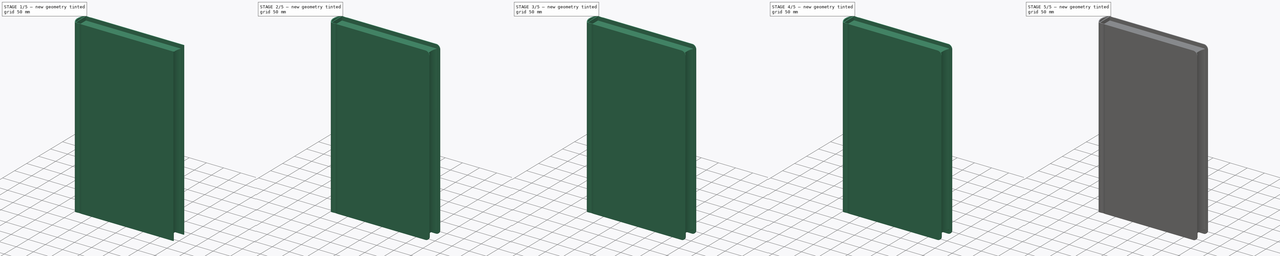
[diagram: build sequence overview — one tinted view per stage of 5, left to right]
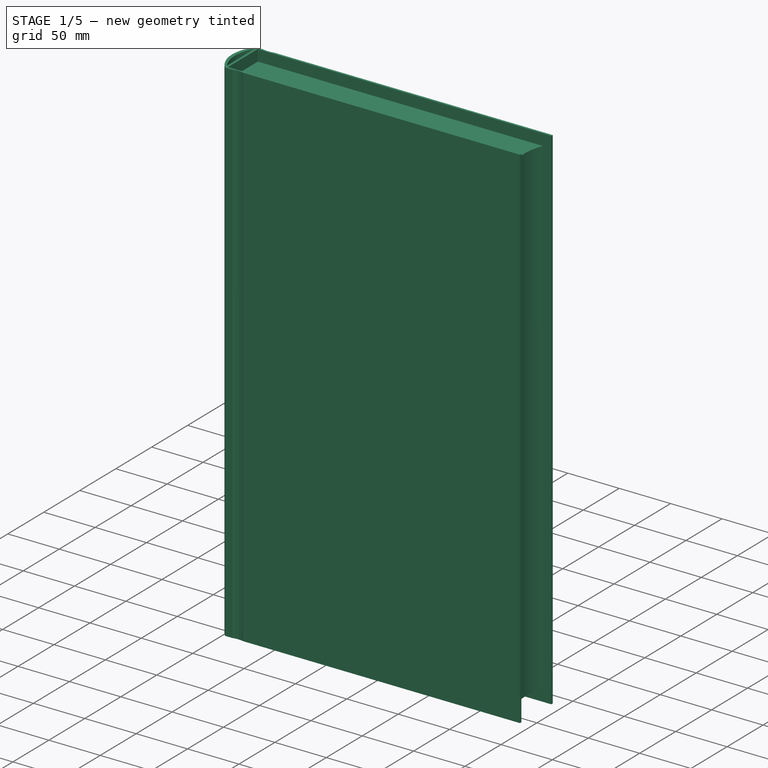
[diagram: stage 1 of 5 — iso view after this stage's code; geometry added in this stage tinted green]
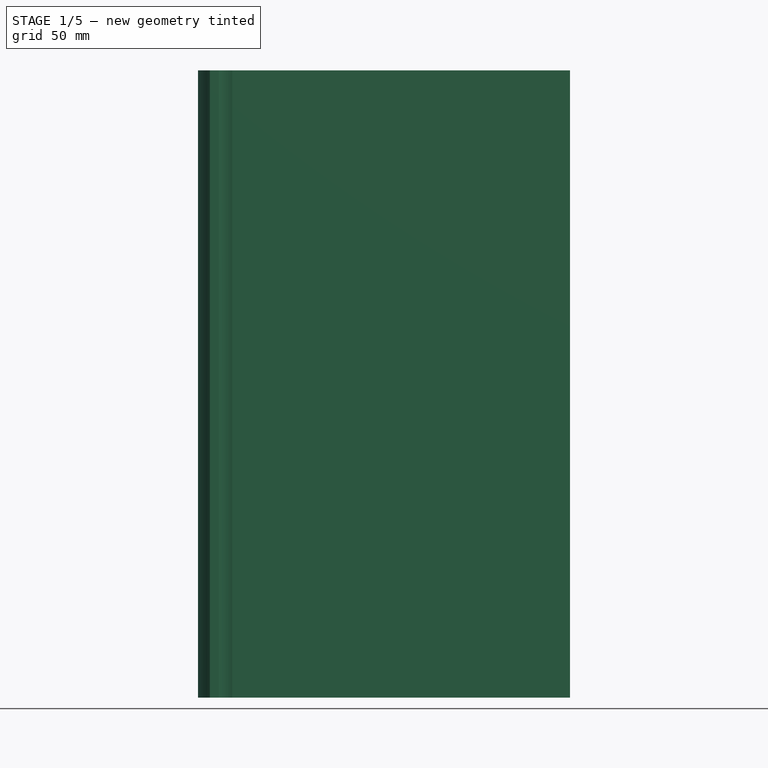
[diagram: stage 1 of 5 — front view after this stage's code; geometry added in this stage tinted green]
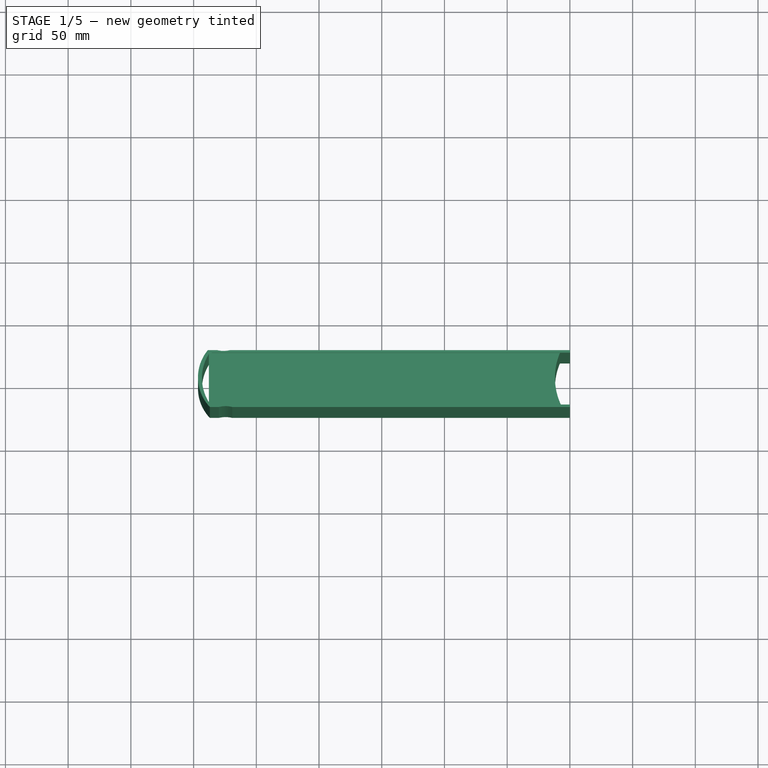
[diagram: stage 1 of 5 — top view after this stage's code; geometry added in this stage tinted green]
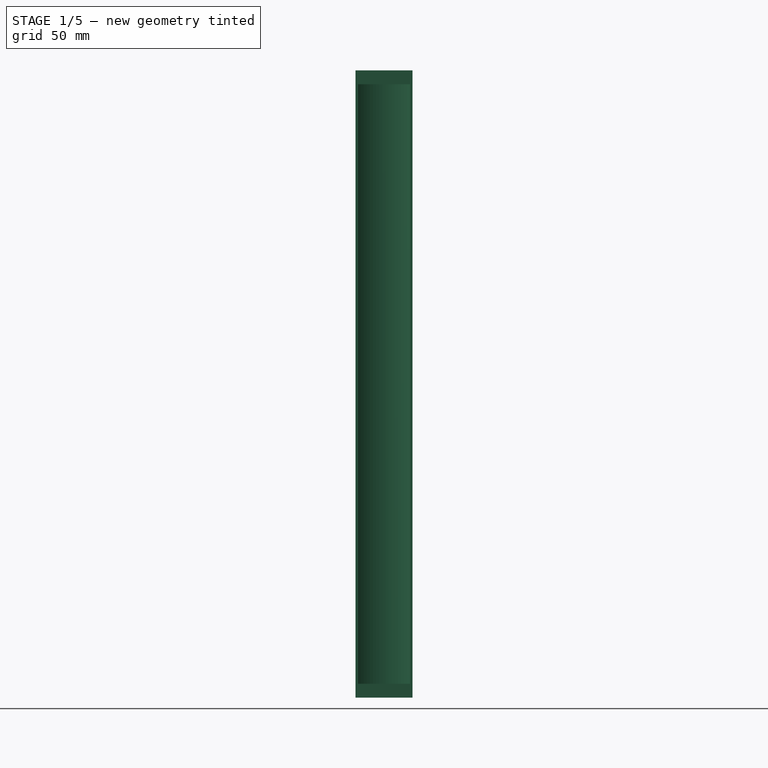
[diagram: stage 1 of 5 — right view after this stage's code; geometry added in this stage tinted green]
FCSTD DOCUMENT  (FreeCAD 0.21R33771 (Git))
Label: kniga
License: All rights reserved
LicenseURL: http://en.wikipedia.org/wiki/All_rights_reserved
objects: PartDesign::Fillet×13, Sketcher::SketchObject×4, PartDesign::Pocket×3, PartDesign::Pad×1, Part::Part2DObjectPython×1, Part::Extrusion×1, Part::MultiFuse×1, PartDesign::Body×1
note: 42 computed .brp shape members not serialized (recipe doc carries the construction recipe); baked Part::Feature solids carry a one-line shape summary decoded from their .brp

FEATURE [Sketcher::SketchObject] Sketch
  FullyConstrained = false
  MapMode = 5
  Support = -> [XY_Plane]
  sketch-geometry (13):
    g0: LineSegment StartX=-138.583 StartY=21.8216 StartZ=0 EndX=-131.38 EndY=21.8216 EndZ=0
    g1: LineSegment StartX=150 StartY=-23.5671 StartZ=0 EndX=-119.216 EndY=-23.5671 EndZ=0
    g2: GeomPoint X=0 Y=0 Z=0
    g3: ArcOfCircle CenterX=-112.541 CenterY=0 CenterZ=0 NormalX=0 NormalY=0 NormalZ=1 AngleXU=0 Radius=33.9758 StartAngle=2.44414 EndAngle=3.90815
    g4: ArcOfCircle CenterX=189.168 CenterY=0 CenterZ=0 NormalX=0 NormalY=0 NormalZ=1 AngleXU=0 Radius=51.0727 StartAngle=2.74303 EndAngle=3.57756
    g5: LineSegment StartX=150.124 StartY=21.8208 StartZ=0 EndX=150.124 EndY=19.8208 EndZ=0
    g6: LineSegment StartX=150 StartY=-23.5671 StartZ=0 EndX=150 EndY=-21.5671 EndZ=0
    g7: LineSegment StartX=142.873 StartY=-21.5671 StartZ=0 EndX=150 EndY=-21.5671 EndZ=0
    g8: LineSegment StartX=150.124 StartY=19.8208 StartZ=0 EndX=142.099 EndY=19.8208 EndZ=0
    g9: ArcOfCircle CenterX=-126.083 CenterY=42.4316 CenterZ=0 NormalX=0 NormalY=0 NormalZ=1 AngleXU=0 Radius=21.28 StartAngle=4.46079 EndAngle=4.96399
    g10: ArcOfCircle CenterX=-124.514 CenterY=-44.1771 CenterZ=0 NormalX=0 NormalY=0 NormalZ=1 AngleXU=0 Radius=21.28 StartAngle=1.3192 EndAngle=1.8224
    g11: LineSegment StartX=-129.812 StartY=-23.5672 StartZ=0 EndX=-137.014 EndY=-23.5676 EndZ=0
    g12: LineSegment StartX=-120.785 StartY=21.8216 StartZ=0 EndX=150.124 EndY=21.8208 EndZ=0
  constraints (29):
    c: Horizontal(g0)
    c: Horizontal(g1)
    c: Coincident(g2,g-1)
    c: PointOnObject(g3,g-1)
    c: Coincident(g0,g3)
    c: Coincident(g3,g11)
    c: PointOnObject(g4,g-1)
    c: Coincident(g5,g12)
    c: Vertical(g5)
    c: Coincident(g6,g1)
    c: Vertical(g6)
    c: Coincident(g7,g6)
    c: Horizontal(g7)
    c: Coincident(g8,g5)
    c: Horizontal(g8)
    c: DistanceY(g5,g5) = 2
    c: DistanceY(g6,g6) = 2
    c: Coincident(g4,g8)
    c: Coincident(g4,g7)
    c: DistanceX(g0,g9) = 12.5
    c: Radius(g9) = 21.28
    c: Radius(g10) = 21.28
    c: DistanceX(g11,g10) = 12.5
    c: Distance(g9,g0) = 20.61
    c: Distance(g10,g1) = 20.61
    c: Coincident(g1,g10)
    c: Coincident(g11,g10)
    c: Coincident(g0,g9)
    c: Coincident(g12,g9)
FEATURE [PartDesign::Pad] Pad
  Direction = (0,0,1)
  Length = 500
  Length2 = 10
  Profile = -> Sketch
  ReferenceAxis = -> Sketch [N_Axis]
  Refine = true
  Type = 0
FEATURE [Sketcher::SketchObject] Sketch002
  FullyConstrained = false
  MapMode = 5
  Placement = pos=(0,0,0) rot=(1,0,0;3.14159rad)
  Support = -> [Pad]
  sketch-geometry (2):
    g0: ArcOfCircle CenterX=-107.024 CenterY=0.494262 CenterZ=0 NormalX=0 NormalY=0 NormalZ=1 AngleXU=0 Radius=36.2996 StartAngle=2.58102 EndAngle=3.70216
    g1: LineSegment StartX=-137.768 StartY=19.7937 StartZ=0 EndX=-137.768 EndY=-18.8052 EndZ=0
  constraints (3):
    c: Vertical(g1)
    c: Coincident(g0,g1)
    c: Coincident(g0,g1)
FEATURE [PartDesign::Pocket] Pocket
  BaseFeature = -> Pad
  Direction = (0,0,1)
  Length = 5
  Length2 = 5
  Profile = -> Sketch002
  ReferenceAxis = -> Sketch002 [N_Axis]
  Refine = true
  Type = 1
FEATURE [Sketcher::SketchObject] Sketch003
  FullyConstrained = false
  MapMode = 5
  Placement = pos=(0,0,0) rot=(1,0,0;3.14159rad)
  Support = -> [Pocket]
  sketch-geometry (5):
    g0: LineSegment StartX=144.041 StartY=-19.8147 StartZ=0 EndX=144.041 EndY=21.5664 EndZ=0
    g1: LineSegment StartX=144.041 StartY=21.5664 StartZ=0 EndX=-135.471 EndY=21.5664 EndZ=0
    g2: LineSegment StartX=-135.471 StartY=21.5664 StartZ=0 EndX=-135.471 EndY=-19.8147 EndZ=0
    g3: LineSegment StartX=-135.471 StartY=-19.8147 StartZ=0 EndX=144.041 EndY=-19.8147 EndZ=0
    g4: GeomPoint X=0 Y=0.774971 Z=0
  constraints (9):
    c: Coincident(g0,g1)
    c: Coincident(g1,g2)
    c: Coincident(g2,g3)
    c: Coincident(g3,g0)
    c: Horizontal(g1)
    c: Horizontal(g3)
    c: Vertical(g0)
    c: Vertical(g2)
    c: PointOnObject(g4,g-2)
FEATURE [PartDesign::Pocket] Pocket001
  BaseFeature = -> Pocket
  Direction = (0,0,1)
  Length = 11
  Length2 = 5
  Profile = -> Sketch003
  ReferenceAxis = -> Sketch003 [N_Axis]
  Refine = true
  Type = 0
FEATURE [PartDesign::Pocket] Pocket002
  BaseFeature = -> Pocket001
  Direction = (0,0,1)
  Length = 11
  Length2 = 5
  Profile = -> Sketch004
  ReferenceAxis = -> Sketch004 [N_Axis]
  Refine = true
  Reversed = true
  Type = 0
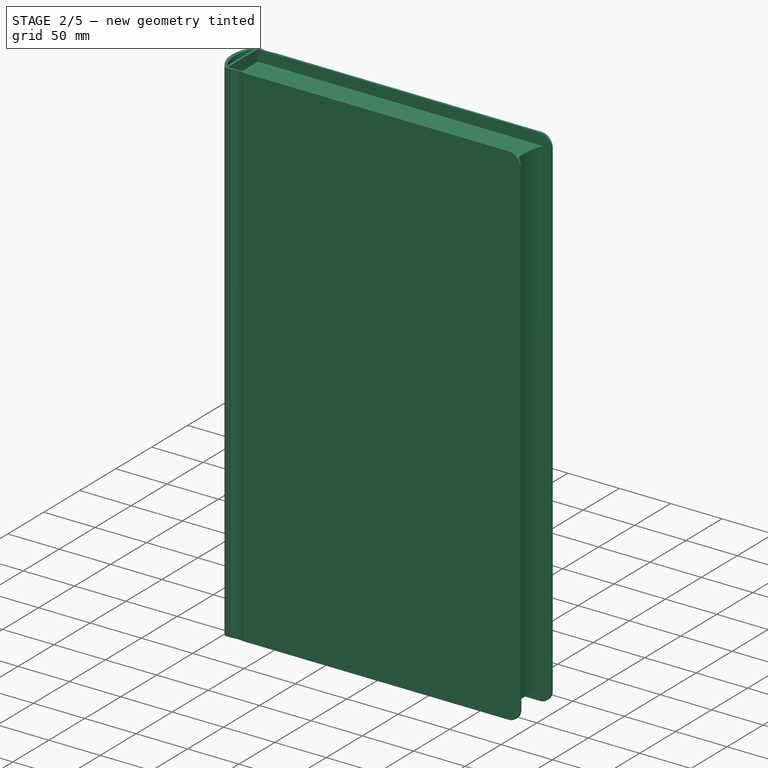
[diagram: stage 2 of 5 — iso view after this stage's code; geometry added in this stage tinted green]
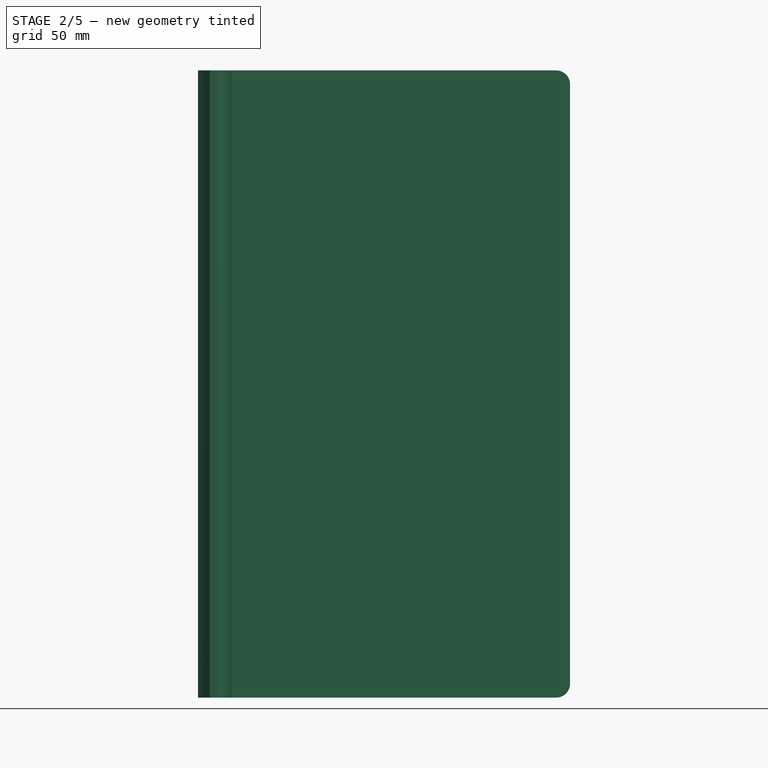
[diagram: stage 2 of 5 — front view after this stage's code; geometry added in this stage tinted green]
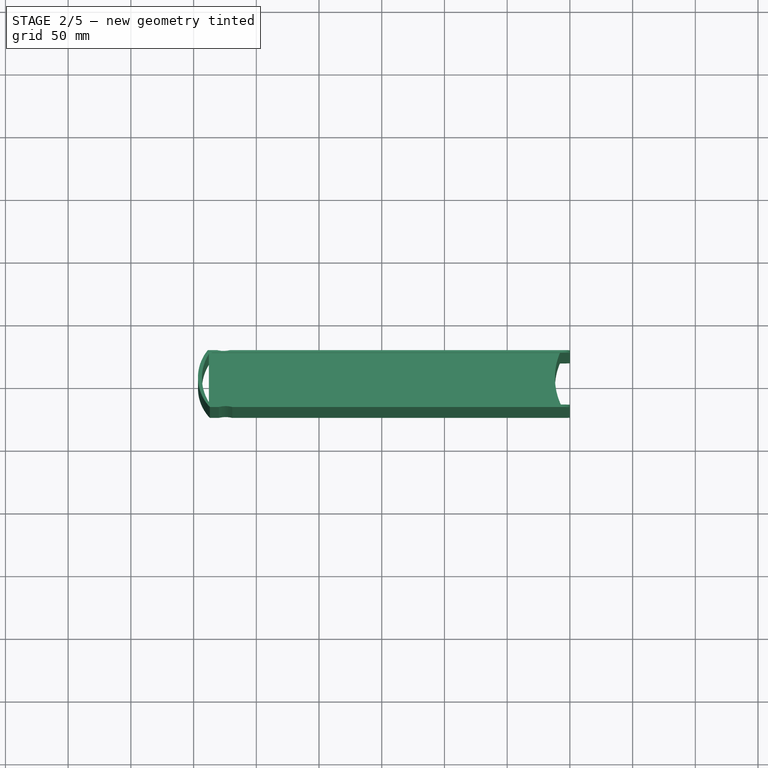
[diagram: stage 2 of 5 — top view after this stage's code; geometry added in this stage tinted green]
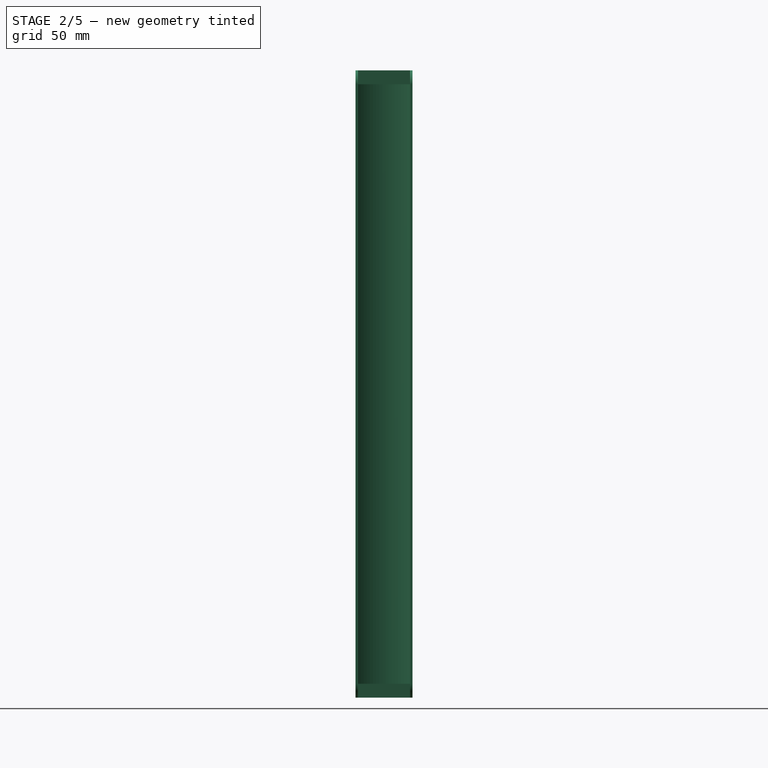
[diagram: stage 2 of 5 — right view after this stage's code; geometry added in this stage tinted green]
FEATURE [PartDesign::Fillet] Fillet
  Base = -> Pocket002 [Edge31]
  BaseFeature = -> Pocket002
  Radius = 11
  Refine = true
  SupportTransform = false
  UseAllEdges = false
FEATURE [PartDesign::Fillet] Fillet001
  Base = -> Fillet [Edge14]
  BaseFeature = -> Fillet
  Radius = 11
  Refine = true
  SupportTransform = false
  UseAllEdges = false
FEATURE [PartDesign::Fillet] Fillet002
  Base = -> Fillet001 [Edge62]
  BaseFeature = -> Fillet001
  Radius = 11
  Refine = true
  SupportTransform = false
  UseAllEdges = false
FEATURE [PartDesign::Fillet] Fillet003
  Base = -> Fillet002 [Edge29]
  BaseFeature = -> Fillet002
  Radius = 11
  Refine = true
  SupportTransform = false
  UseAllEdges = false
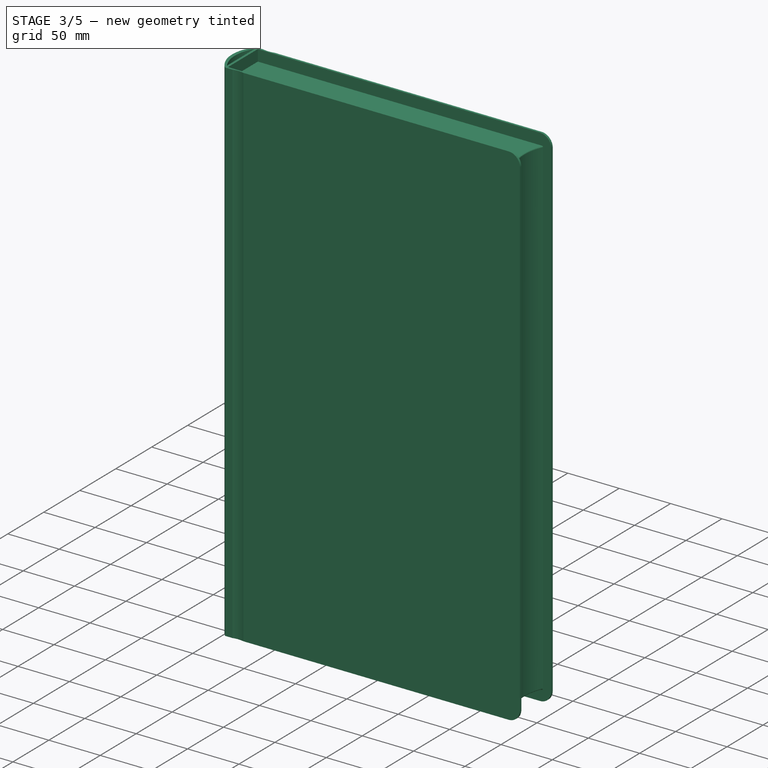
[diagram: stage 3 of 5 — iso view after this stage's code; geometry added in this stage tinted green]
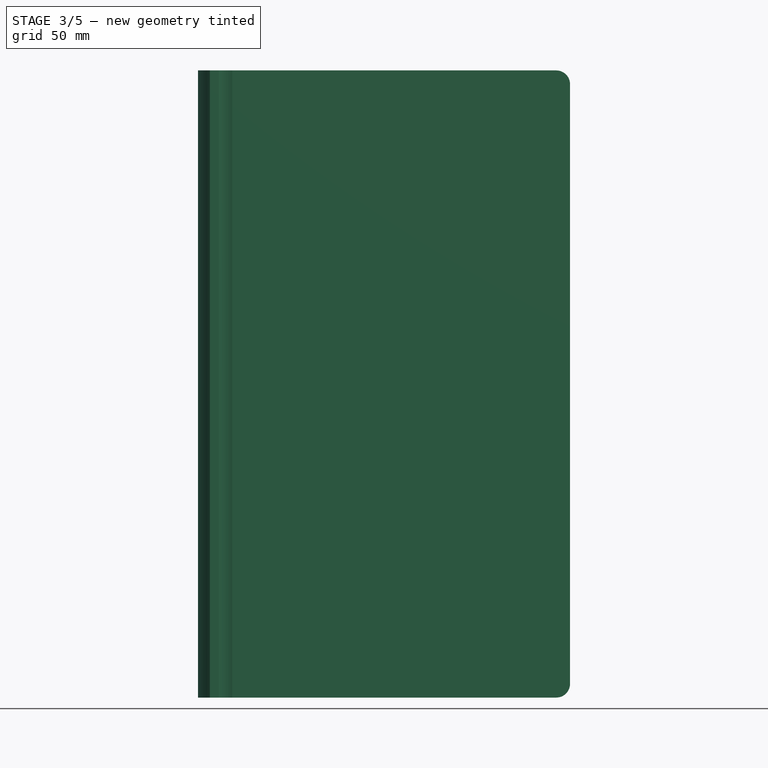
[diagram: stage 3 of 5 — front view after this stage's code; geometry added in this stage tinted green]
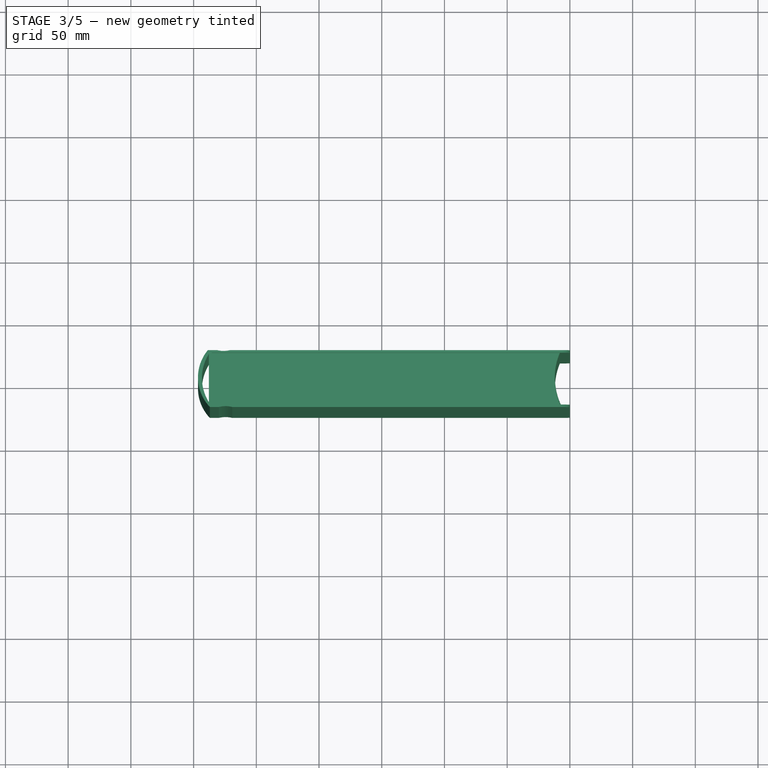
[diagram: stage 3 of 5 — top view after this stage's code; geometry added in this stage tinted green]
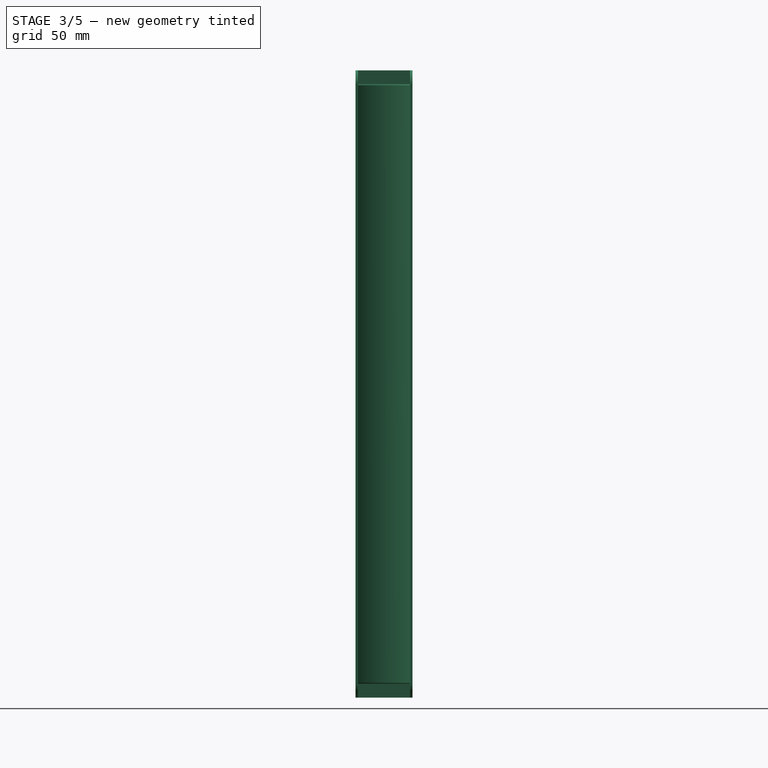
[diagram: stage 3 of 5 — right view after this stage's code; geometry added in this stage tinted green]
FEATURE [PartDesign::Fillet] Fillet004
  Base = -> Fillet003 [Edge58]
  BaseFeature = -> Fillet003
  Radius = 1
  Refine = true
  SupportTransform = false
  UseAllEdges = false
FEATURE [PartDesign::Fillet] Fillet005
  Base = -> Fillet004 [Edge12]
  BaseFeature = -> Fillet004
  Radius = 1
  Refine = true
  SupportTransform = false
  UseAllEdges = false
FEATURE [PartDesign::Fillet] Fillet006
  Base = -> Fillet005 [Edge28]
  BaseFeature = -> Fillet005
  Radius = 1
  Refine = true
  SupportTransform = false
  UseAllEdges = false
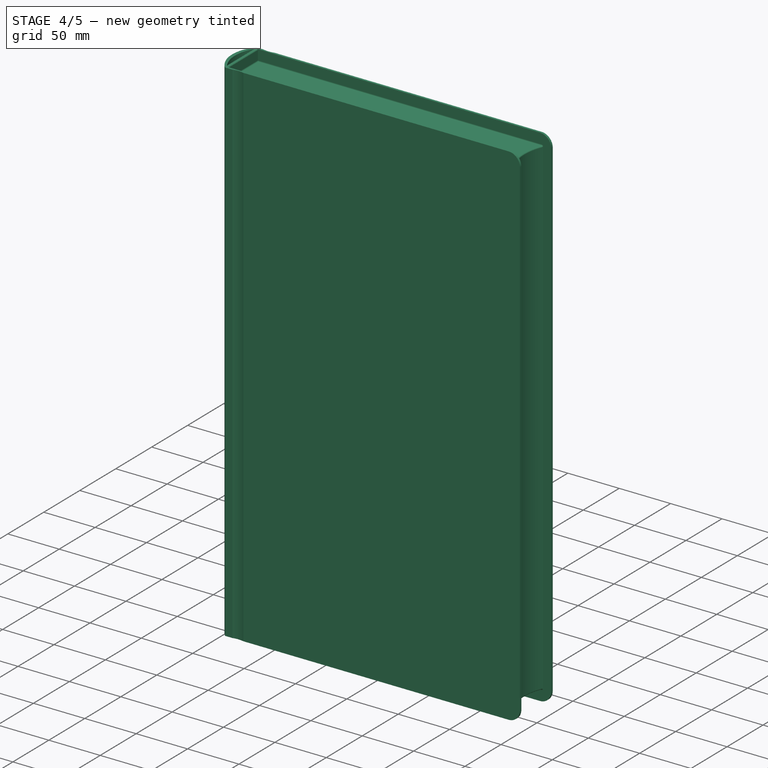
[diagram: stage 4 of 5 — iso view after this stage's code; geometry added in this stage tinted green]
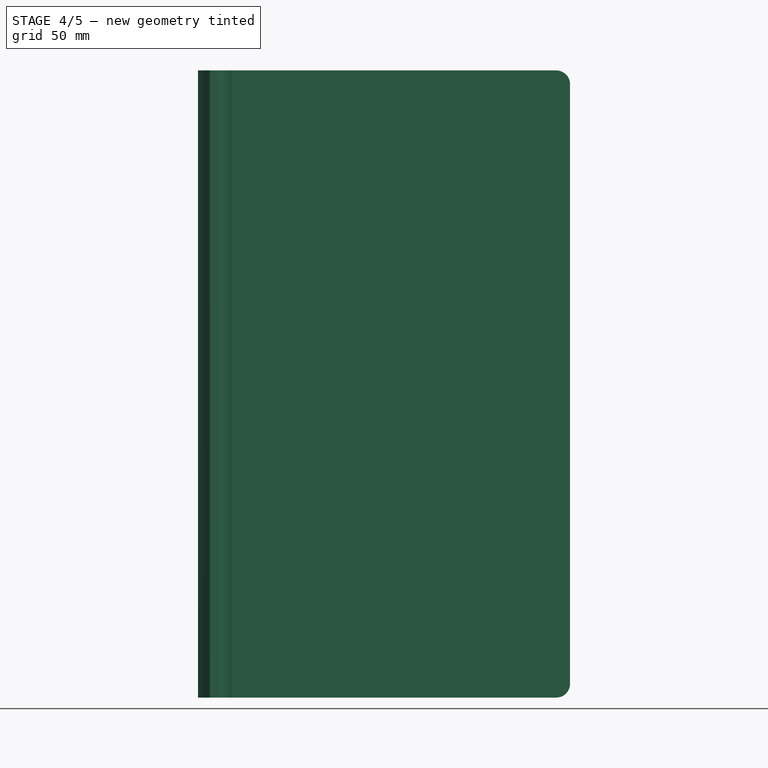
[diagram: stage 4 of 5 — front view after this stage's code; geometry added in this stage tinted green]
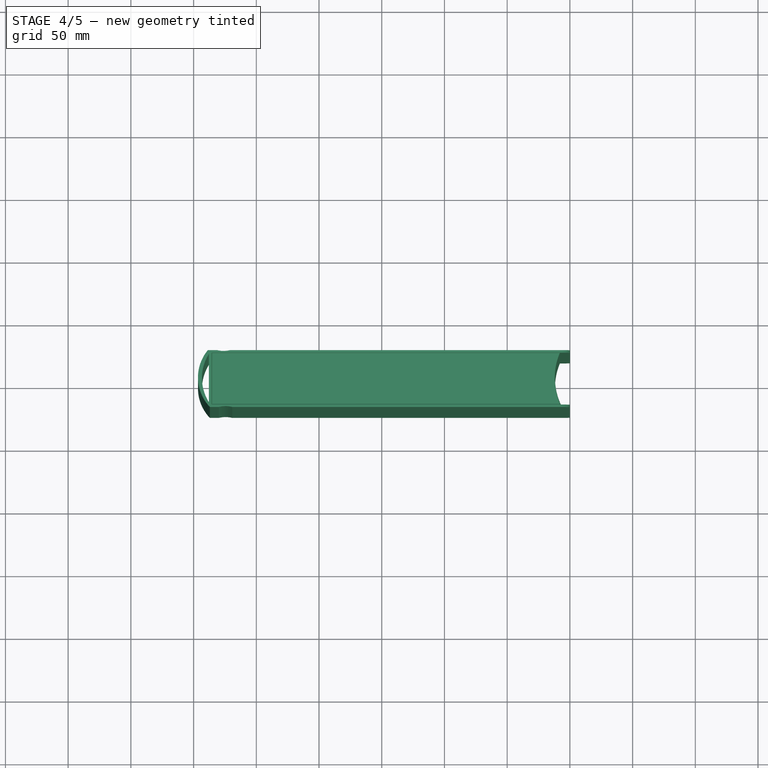
[diagram: stage 4 of 5 — top view after this stage's code; geometry added in this stage tinted green]
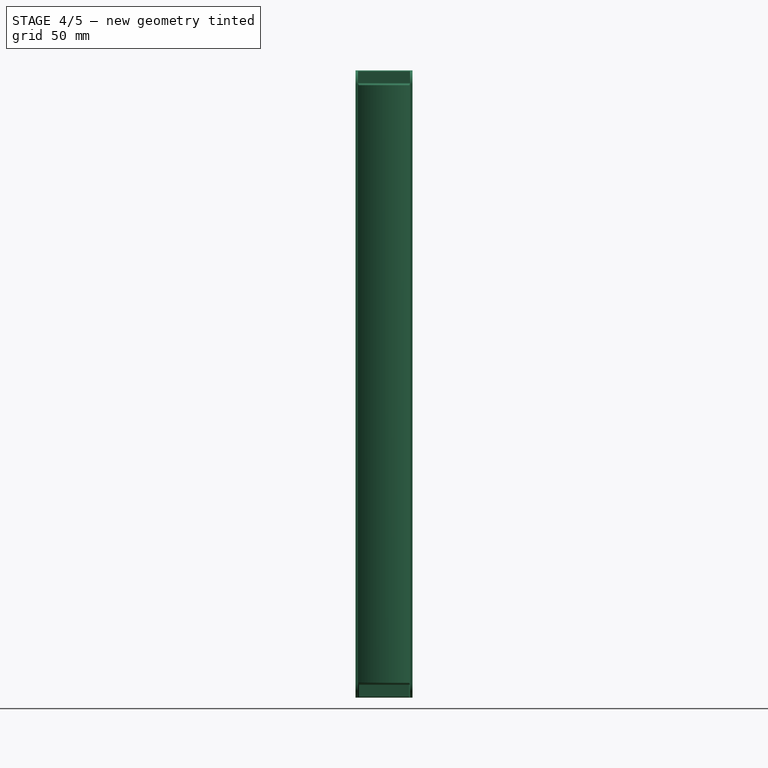
[diagram: stage 4 of 5 — right view after this stage's code; geometry added in this stage tinted green]
FEATURE [PartDesign::Fillet] Fillet007
  Base = -> Fillet006 [Edge22]
  BaseFeature = -> Fillet006
  Radius = 1
  Refine = true
  SupportTransform = false
  UseAllEdges = false
FEATURE [PartDesign::Fillet] Fillet008
  Base = -> Fillet007 [Face19]
  BaseFeature = -> Fillet007
  Radius = 1
  Refine = true
  SupportTransform = false
  UseAllEdges = false
FEATURE [PartDesign::Fillet] Fillet009
  Base = -> Fillet008 [Face40]
  BaseFeature = -> Fillet008
  Radius = 1
  Refine = true
  SupportTransform = false
  UseAllEdges = false
FEATURE [PartDesign::Fillet] Fillet010
  Base = -> Fillet009 [Edge66]
  BaseFeature = -> Fillet009
  Radius = 1
  Refine = true
  SupportTransform = false
  UseAllEdges = false
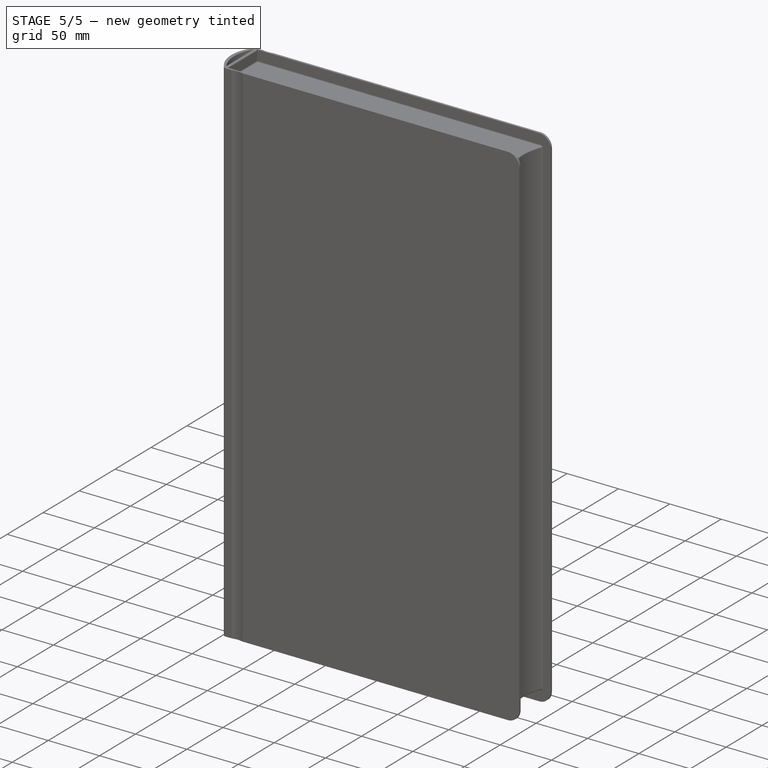
[diagram: stage 5 of 5 — iso view after this stage's code; geometry added in this stage tinted green]
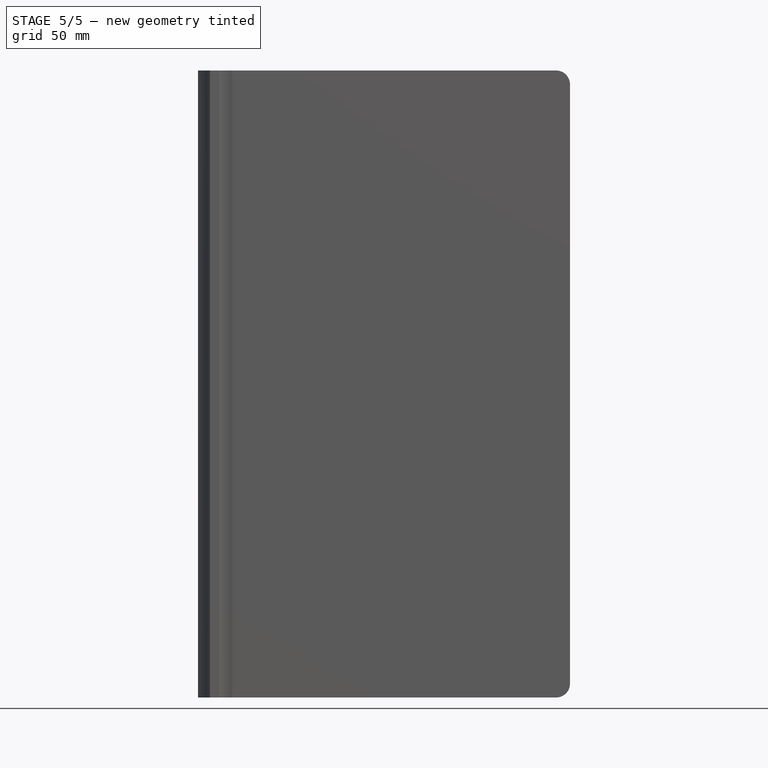
[diagram: stage 5 of 5 — front view after this stage's code; geometry added in this stage tinted green]
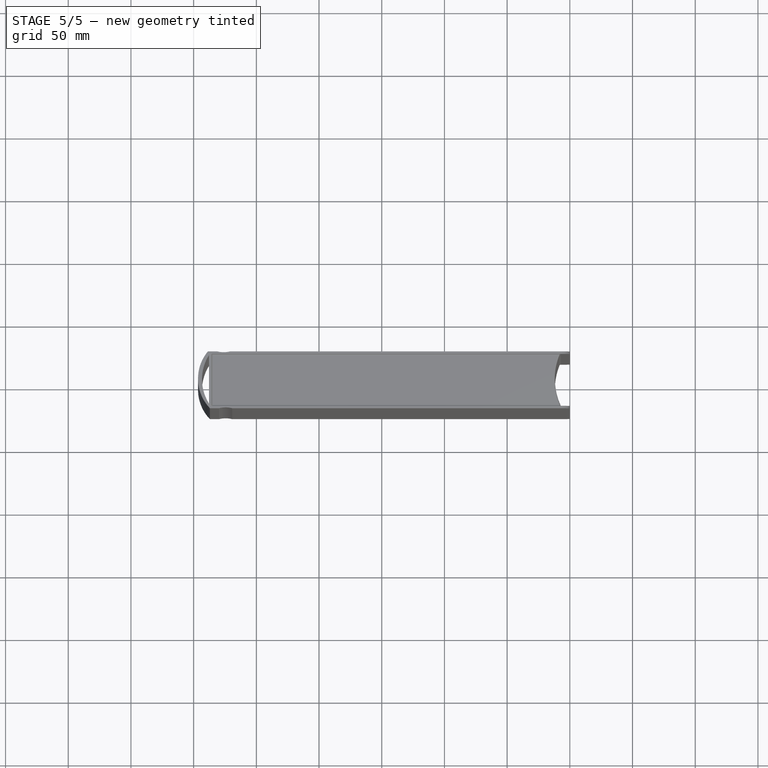
[diagram: stage 5 of 5 — top view after this stage's code; geometry added in this stage tinted green]
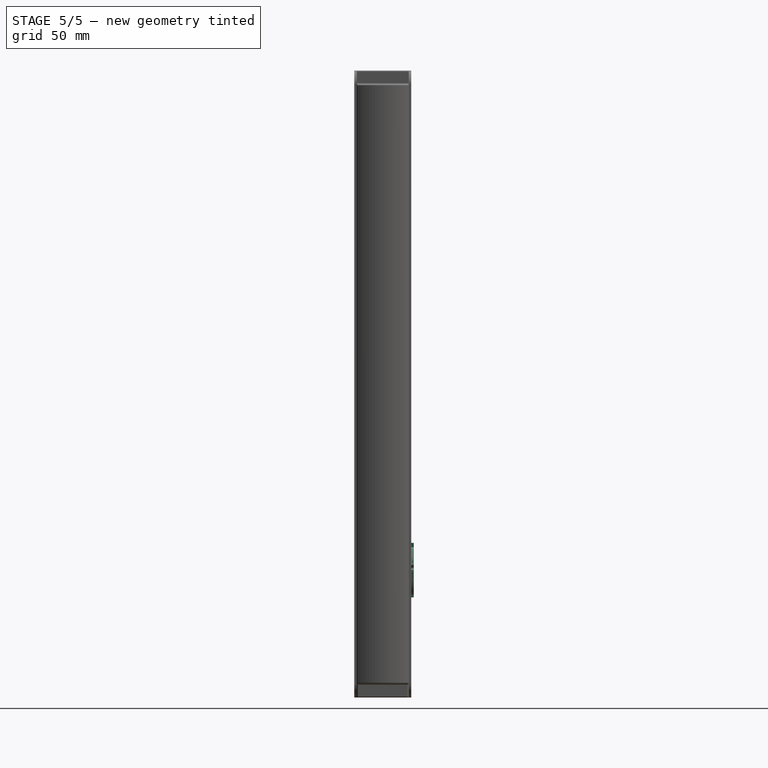
[diagram: stage 5 of 5 — right view after this stage's code; geometry added in this stage tinted green]
FEATURE [Sketcher::SketchObject] Sketch004
  AttachmentOffset = pos=(0,0,-500) rot=(0,0,1;0rad)
  FullyConstrained = false
  MapMode = 5
  Placement = pos=(0,0,500) rot=(1,0,0;3.14159rad)
  Support = -> [Pocket]
  sketch-geometry (5):
    g0: LineSegment StartX=144.041 StartY=-19.8147 StartZ=0 EndX=144.041 EndY=21.5664 EndZ=0
    g1: LineSegment StartX=144.041 StartY=21.5664 StartZ=0 EndX=-135.471 EndY=21.5664 EndZ=0
    g2: LineSegment StartX=-135.471 StartY=21.5664 StartZ=0 EndX=-135.471 EndY=-19.8147 EndZ=0
    g3: LineSegment StartX=-135.471 StartY=-19.8147 StartZ=0 EndX=144.041 EndY=-19.8147 EndZ=0
    g4: GeomPoint X=0 Y=0.774971 Z=0
  constraints (9):
    c: Coincident(g0,g1)
    c: Coincident(g1,g2)
    c: Coincident(g2,g3)
    c: Coincident(g3,g0)
    c: Horizontal(g1)
    c: Horizontal(g3)
    c: Vertical(g0)
    c: Vertical(g2)
    c: PointOnObject(g4,g-2)
FEATURE [Part::Part2DObjectPython] ShapeString  # Draft 2D object (typed FeaturePython)
  FontFile = <userpath>/Downloads/brownie-stencil-font/BrownieStencil-8O8MJ.ttf
  MakeFace = true
  Placement = pos=(-44,21.82,118.45) rot=(0.71,0,0;4.71239rad)
  Size = 20
  String = Bible
  Tracking = 0
FEATURE [Part::Extrusion] Extrude
  Base = -> ShapeString
  Dir = (0,1,-2e-16)
  DirMode = 2
  FaceMakerClass = Part::FaceMakerBullseye
  LengthFwd = 2
  LengthRev = 0
  Solid = false
  Symmetric = false
FEATURE [Part::MultiFuse] Fusion
  Refine = true
  Shapes = -> [Extrude]
FEATURE [PartDesign::Fillet] Fillet011
  Base = -> Fillet010 [Edge34]
  BaseFeature = -> Fillet010
  Radius = 1
  Refine = true
  SupportTransform = false
  UseAllEdges = false
FEATURE [PartDesign::Fillet] Fillet012
  Base = -> Fillet011 [Edge50]
  BaseFeature = -> Fillet011
  Radius = 1
  Refine = true
  SupportTransform = false
  UseAllEdges = false
FEATURE [PartDesign::Body] Body
  Group = -> [Sketch,Pad,Sketch002,Pocket,Sketch003,Pocket001,Sketch004,Pocket002,Fillet,Fillet001,Fillet002,Fillet003,Fillet004,Fillet005,Fillet006,Fillet007,Fillet008,Fillet009,Fillet010,Fillet011,Fillet012]
  Origin = -> Origin
  Tip = -> Fillet012
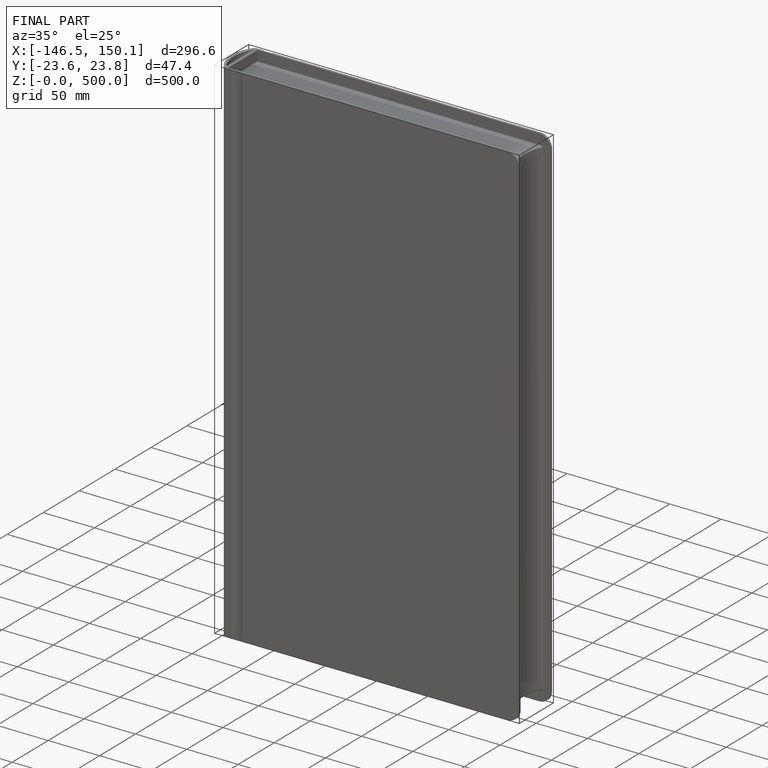
[diagram: finished part — iso view with bounding-box wireframe]
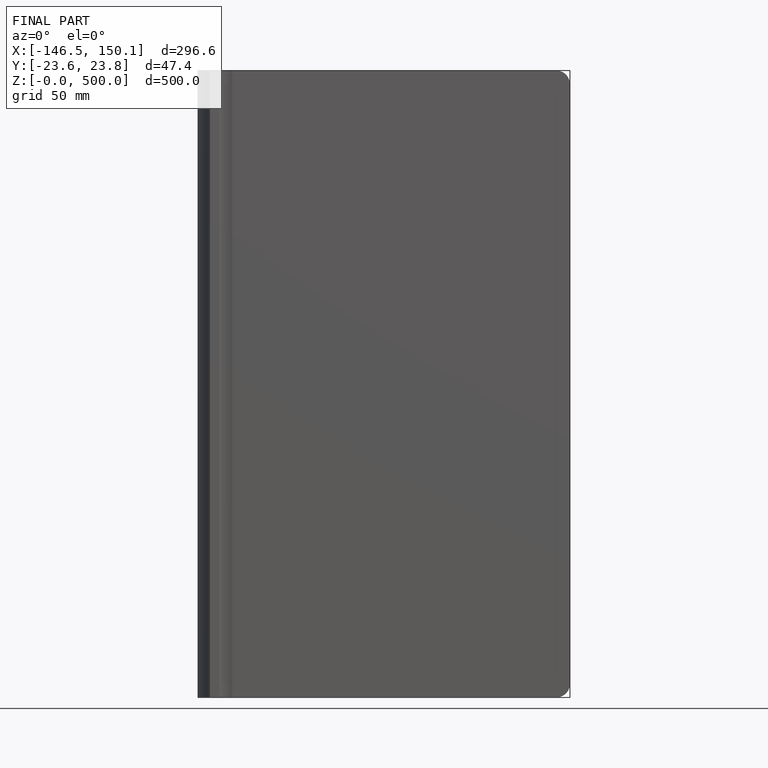
[diagram: finished part — front view with bounding-box wireframe]
